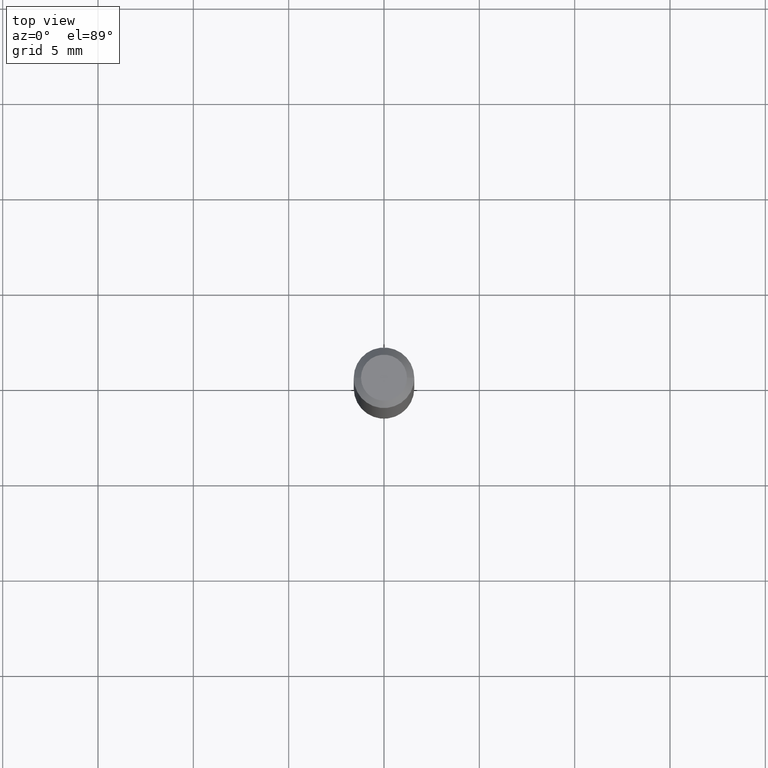
[diagram: clean part render]
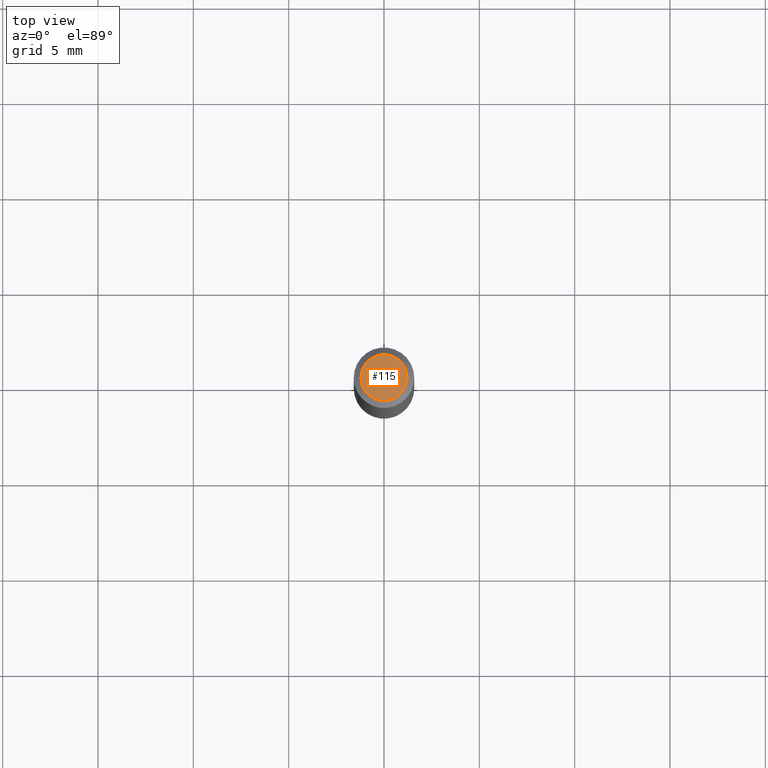
[diagram: same view with one face highlighted and labeled with its STEP entity id]
A machine part, top view. The second image highlights one B-rep face of the part: STEP entity #115.
In plain terms, the highlighted planar face has unit normal (0, -0, -1).
Its self-contained STEP definition (entity closure, byte-faithful):
#22 = DIRECTION ( 'NONE',  ( -2.445468806185136597E-29, 3.491481338843145583E-15, 1.000000000000000000 ) ) ;
#31 = PLANE ( 'NONE',  #232 ) ;
#53 = CARTESIAN_POINT ( 'NONE',  ( -6.680649051745406845E-45, 9.538196290434862081E-31, 2.731847993664263218E-16 ) ) ;
#115 = ADVANCED_FACE ( 'NONE', ( #456 ), #31, .F. ) ;
#123 = EDGE_CURVE ( 'NONE', #488, #389, #472, .T. ) ;
#125 = ORIENTED_EDGE ( 'NONE', *, *, #123, .T. ) ;
#150 = ORIENTED_EDGE ( 'NONE', *, *, #293, .T. ) ;
#153 = CIRCLE ( 'NONE', #420, 0.04750000000000000749 ) ;
#178 = DIRECTION ( 'NONE',  ( -1.000000000000000000, 6.982962677686265922E-15, -4.876176775795935793E-29 ) ) ;
#182 = CARTESIAN_POINT ( 'NONE',  ( -6.680649051745406845E-45, 9.538196290434862081E-31, 2.731847993664263218E-16 ) ) ;
#199 = CARTESIAN_POINT ( 'NONE',  ( -0.04750000000000000749, 3.578768372314221353E-16, 2.731847993664239060E-16 ) ) ;
#232 = AXIS2_PLACEMENT_3D ( 'NONE', #257, #499, #178 ) ;
#257 = CARTESIAN_POINT ( 'NONE',  ( 3.316907271900976589E-16, 0.04750000000000000749, -2.925296391183627249E-17 ) ) ;
#293 = EDGE_CURVE ( 'NONE', #389, #488, #153, .T. ) ;
#334 = CARTESIAN_POINT ( 'NONE',  ( 0.04750000000000000749, -4.035134999187568762E-16, 2.731847993664288856E-16 ) ) ;
#389 = VERTEX_POINT ( 'NONE', #199 ) ;
#396 = DIRECTION ( 'NONE',  ( -2.445468806185136597E-29, 3.491481338843145583E-15, 1.000000000000000000 ) ) ;
#407 = DIRECTION ( 'NONE',  ( 1.000000000000000000, -6.982962677686266711E-15, 4.852736867747365086E-29 ) ) ;
#411 = AXIS2_PLACEMENT_3D ( 'NONE', #182, #22, #425 ) ;
#420 = AXIS2_PLACEMENT_3D ( 'NONE', #53, #396, #407 ) ;
#425 = DIRECTION ( 'NONE',  ( 1.000000000000000000, -6.982962677686266711E-15, 4.852736867747365086E-29 ) ) ;
#436 = EDGE_LOOP ( 'NONE', ( #150, #125 ) ) ;
#456 = FACE_OUTER_BOUND ( 'NONE', #436, .T. ) ;
#472 = CIRCLE ( 'NONE', #411, 0.04750000000000000749 ) ;
#488 = VERTEX_POINT ( 'NONE', #334 ) ;
#499 = DIRECTION ( 'NONE',  ( 2.438088387897960049E-29, -3.491481338843145188E-15, -1.000000000000000000 ) ) ;